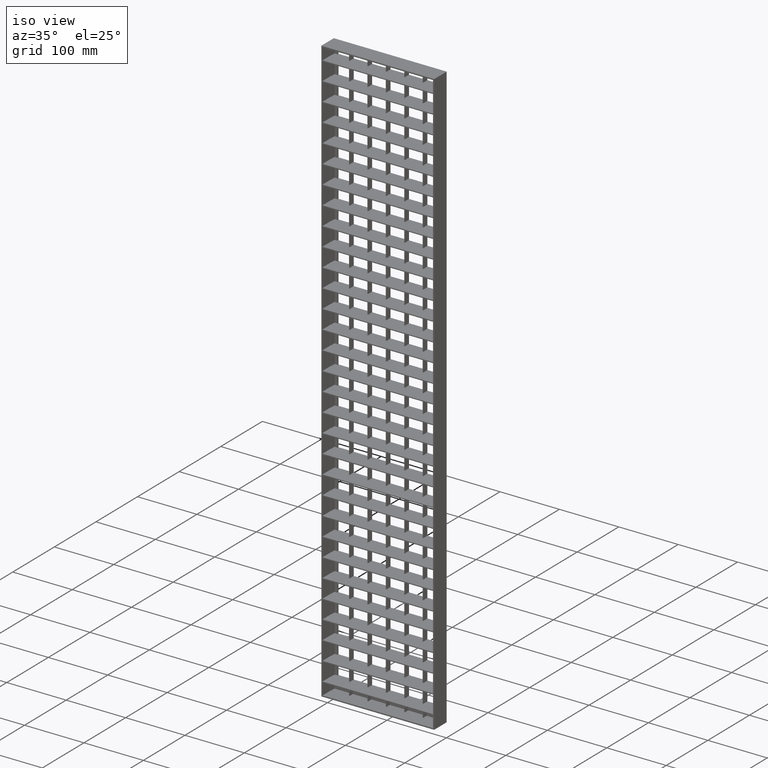
[diagram: clean part render]
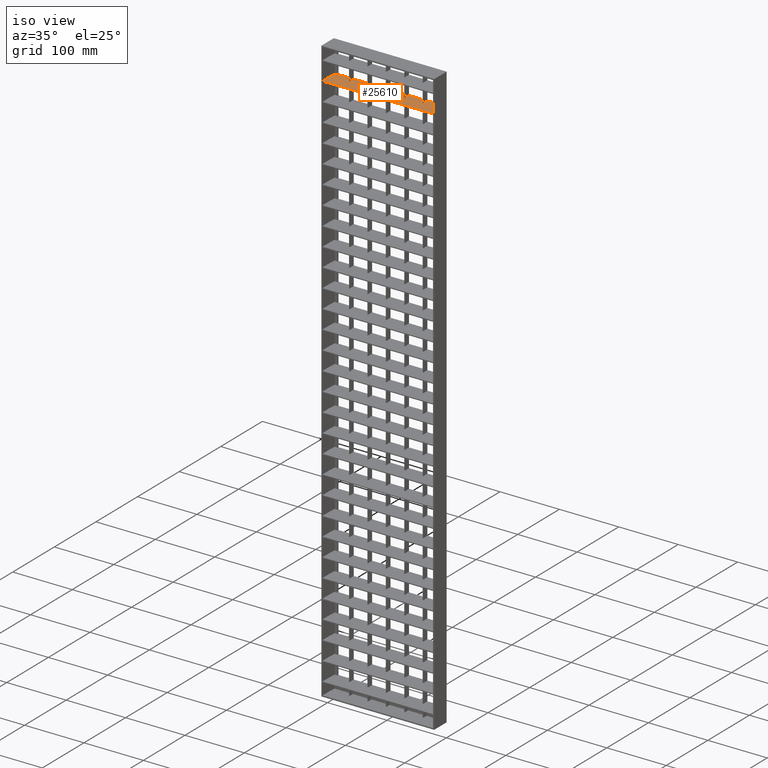
[diagram: same view with one face highlighted and labeled with its STEP entity id]
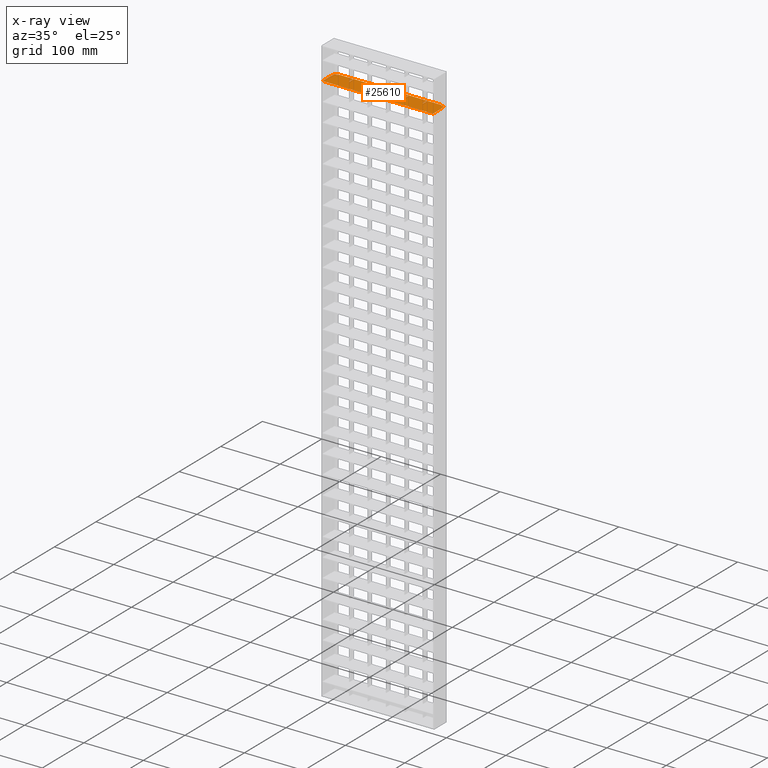
[diagram: x-ray of the same camera — body ghosted, the highlighted face saturated]
A machine part, iso view. The second image highlights one B-rep face of the part: STEP entity #25610.
The next image is the same camera in x-ray: the body ghosted, the highlighted face saturated — about 0% of this face is hidden behind the body in this view.
In plain terms, the highlighted planar face has unit normal (0, 0, 1).
Its self-contained STEP definition (entity closure, byte-faithful):
#11 = LINE ( 'NONE', #9444, #16000 ) ;
#98 = CARTESIAN_POINT ( 'NONE',  ( 182.0000000000000600, 12.99999999999991300, -53.25000000000002100 ) ) ;
#169 = CARTESIAN_POINT ( 'NONE',  ( 7.999999999999994700, 15.00000000000000400, -53.25000000000002100 ) ) ;
#260 = ORIENTED_EDGE ( 'NONE', *, *, #27481, .T. ) ;
#364 = VECTOR ( 'NONE', #28938, 1000.000000000000000 ) ;
#617 = VECTOR ( 'NONE', #13828, 1000.000000000000000 ) ;
#668 = DIRECTION ( 'NONE',  ( -0.0000000000000000000, 1.000000000000000000, 0.0000000000000000000 ) ) ;
#858 = LINE ( 'NONE', #17349, #5704 ) ;
#986 = EDGE_CURVE ( 'NONE', #2645, #6551, #23534, .T. ) ;
#1225 = PLANE ( 'NONE',  #17804 ) ;
#1647 = VERTEX_POINT ( 'NONE', #18516 ) ;
#1932 = CARTESIAN_POINT ( 'NONE',  ( 125.5000000000000600, 15.00000000000003000, -53.25000000000002100 ) ) ;
#1982 = CARTESIAN_POINT ( 'NONE',  ( 33.49999999999997200, 5.000000000000004400, -53.25000000000002100 ) ) ;
#2192 = DIRECTION ( 'NONE',  ( -1.000000000000000000, 0.0000000000000000000, 0.0000000000000000000 ) ) ;
#2348 = DIRECTION ( 'NONE',  ( -1.000000000000000000, 0.0000000000000000000, 0.0000000000000000000 ) ) ;
#2492 = VECTOR ( 'NONE', #11216, 1000.000000000000000 ) ;
#2598 = CARTESIAN_POINT ( 'NONE',  ( 157.5000000000000300, -14.99999999999994000, -53.25000000000002100 ) ) ;
#2645 = VERTEX_POINT ( 'NONE', #1932 ) ;
#2646 = CARTESIAN_POINT ( 'NONE',  ( 218.0374765917512100, 15.00000000000005900, -53.25000000000002100 ) ) ;
#2665 = EDGE_CURVE ( 'NONE', #24377, #4740, #11, .T. ) ;
#2683 = CARTESIAN_POINT ( 'NONE',  ( 182.0000000000000000, 15.00000000000000400, -53.25000000000002100 ) ) ;
#2855 = VERTEX_POINT ( 'NONE', #29142 ) ;
#3113 = EDGE_CURVE ( 'NONE', #5401, #33795, #5750, .T. ) ;
#3355 = VECTOR ( 'NONE', #15697, 1000.000000000000000 ) ;
#3435 = DIRECTION ( 'NONE',  ( -0.0000000000000000000, 1.000000000000000000, 0.0000000000000000000 ) ) ;
#3754 = VERTEX_POINT ( 'NONE', #26446 ) ;
#3827 = VECTOR ( 'NONE', #2348, 1000.000000000000000 ) ;
#3873 = ORIENTED_EDGE ( 'NONE', *, *, #26196, .F. ) ;
#4044 = ORIENTED_EDGE ( 'NONE', *, *, #13870, .F. ) ;
#4169 = LINE ( 'NONE', #11078, #32875 ) ;
#4242 = LINE ( 'NONE', #8551, #22304 ) ;
#4277 = VECTOR ( 'NONE', #30018, 1000.000000000000000 ) ;
#4444 = DIRECTION ( 'NONE',  ( -1.000000000000000000, 0.0000000000000000000, 0.0000000000000000000 ) ) ;
#4572 = VERTEX_POINT ( 'NONE', #9926 ) ;
#4740 = VERTEX_POINT ( 'NONE', #31374 ) ;
#4979 = EDGE_CURVE ( 'NONE', #13969, #5401, #14091, .T. ) ;
#4991 = VECTOR ( 'NONE', #18995, 1000.000000000000000 ) ;
#5071 = CARTESIAN_POINT ( 'NONE',  ( 63.49999999999997200, 5.000000000000000900, -53.25000000000002100 ) ) ;
#5093 = VECTOR ( 'NONE', #32927, 1000.000000000000000 ) ;
#5099 = CARTESIAN_POINT ( 'NONE',  ( 126.5000000000000600, 5.000000000000002700, -53.25000000000024200 ) ) ;
#5348 = DIRECTION ( 'NONE',  ( -0.0000000000000000000, 1.000000000000000000, 0.0000000000000000000 ) ) ;
#5397 = ORIENTED_EDGE ( 'NONE', *, *, #13413, .T. ) ;
#5401 = VERTEX_POINT ( 'NONE', #5099 ) ;
#5473 = CARTESIAN_POINT ( 'NONE',  ( 218.0374765917512100, 15.00000000000005900, -53.25000000000002100 ) ) ;
#5704 = VECTOR ( 'NONE', #10529, 1000.000000000000000 ) ;
#5750 = LINE ( 'NONE', #9039, #2492 ) ;
#6041 = FACE_OUTER_BOUND ( 'NONE', #30929, .T. ) ;
#6547 = DIRECTION ( 'NONE',  ( 1.000000000000000000, 0.0000000000000000000, -0.0000000000000000000 ) ) ;
#6551 = VERTEX_POINT ( 'NONE', #18221 ) ;
#6713 = ORIENTED_EDGE ( 'NONE', *, *, #4979, .T. ) ;
#6748 = ORIENTED_EDGE ( 'NONE', *, *, #20686, .T. ) ;
#6867 = LINE ( 'NONE', #20655, #15026 ) ;
#7119 = VERTEX_POINT ( 'NONE', #16712 ) ;
#7123 = VERTEX_POINT ( 'NONE', #27250 ) ;
#7126 = CARTESIAN_POINT ( 'NONE',  ( 218.0374765917512100, -14.99999999999994000, -53.25000000000002100 ) ) ;
#7221 = LINE ( 'NONE', #19759, #27342 ) ;
#7263 = LINE ( 'NONE', #14855, #11759 ) ;
#7483 = DIRECTION ( 'NONE',  ( 0.0000000000000000000, -1.000000000000000000, 0.0000000000000000000 ) ) ;
#7518 = VERTEX_POINT ( 'NONE', #15749 ) ;
#7537 = LINE ( 'NONE', #17014, #5093 ) ;
#7639 = VECTOR ( 'NONE', #6547, 1000.000000000000000 ) ;
#7841 = ORIENTED_EDGE ( 'NONE', *, *, #9731, .T. ) ;
#8001 = EDGE_CURVE ( 'NONE', #3754, #1647, #858, .T. ) ;
#8174 = CARTESIAN_POINT ( 'NONE',  ( 94.49999999999997200, 15.00000000000000200, -53.25000000000024200 ) ) ;
#8320 = EDGE_CURVE ( 'NONE', #23925, #7518, #16769, .T. ) ;
#8424 = CARTESIAN_POINT ( 'NONE',  ( 64.49999999999997200, 5.000000000000004400, -53.25000000000002100 ) ) ;
#8551 = CARTESIAN_POINT ( 'NONE',  ( 95.49999999999997200, -14.99999999999994000, -53.25000000000002100 ) ) ;
#8616 = CARTESIAN_POINT ( 'NONE',  ( 33.49999999999997200, 15.00000000000000200, -53.25000000000002100 ) ) ;
#8842 = EDGE_CURVE ( 'NONE', #2855, #7119, #30250, .T. ) ;
#9039 = CARTESIAN_POINT ( 'NONE',  ( 218.0374765917512100, 5.000000000000000900, -53.25000000000002100 ) ) ;
#9198 = VECTOR ( 'NONE', #33426, 1000.000000000000000 ) ;
#9347 = CARTESIAN_POINT ( 'NONE',  ( 2.499999999999974200, 13.00000000000000400, -53.25000000000002100 ) ) ;
#9444 = CARTESIAN_POINT ( 'NONE',  ( 218.0374765917512100, -14.99999999999994000, -53.25000000000002100 ) ) ;
#9590 = VERTEX_POINT ( 'NONE', #1982 ) ;
#9631 = DIRECTION ( 'NONE',  ( -1.000000000000000000, -3.061616997868382600E-016, 0.0000000000000000000 ) ) ;
#9729 = VECTOR ( 'NONE', #11930, 1000.000000000000000 ) ;
#9731 = EDGE_CURVE ( 'NONE', #7123, #13969, #25290, .T. ) ;
#9926 = CARTESIAN_POINT ( 'NONE',  ( 156.5000000000000300, 5.000000000000002700, -53.25000000000024200 ) ) ;
#9955 = CARTESIAN_POINT ( 'NONE',  ( 218.0374765917512100, 15.00000000000005900, -53.25000000000002100 ) ) ;
#10025 = ORIENTED_EDGE ( 'NONE', *, *, #18409, .T. ) ;
#10138 = CARTESIAN_POINT ( 'NONE',  ( 2.000000000000004900, 13.00000000000000400, -53.25000000000002100 ) ) ;
#10305 = EDGE_CURVE ( 'NONE', #29426, #25731, #32986, .T. ) ;
#10360 = VECTOR ( 'NONE', #13688, 1000.000000000000000 ) ;
#10462 = EDGE_CURVE ( 'NONE', #12437, #33728, #21502, .T. ) ;
#10529 = DIRECTION ( 'NONE',  ( 1.000000000000000000, 0.0000000000000000000, -0.0000000000000000000 ) ) ;
#10573 = EDGE_CURVE ( 'NONE', #33728, #6551, #4242, .T. ) ;
#10881 = VERTEX_POINT ( 'NONE', #9347 ) ;
#10975 = EDGE_CURVE ( 'NONE', #17738, #4572, #22276, .T. ) ;
#11078 = CARTESIAN_POINT ( 'NONE',  ( 2.499999999999974200, -14.99999999999994000, -53.25000000000002100 ) ) ;
#11079 = CARTESIAN_POINT ( 'NONE',  ( 32.49999999999997200, 5.000000000000000900, -53.25000000000002100 ) ) ;
#11216 = DIRECTION ( 'NONE',  ( -1.000000000000000000, 0.0000000000000000000, 0.0000000000000000000 ) ) ;
#11245 = ORIENTED_EDGE ( 'NONE', *, *, #11300, .T. ) ;
#11300 = EDGE_CURVE ( 'NONE', #29426, #22685, #31655, .T. ) ;
#11342 = ORIENTED_EDGE ( 'NONE', *, *, #33513, .T. ) ;
#11618 = DIRECTION ( 'NONE',  ( 0.0000000000000000000, -1.000000000000000000, 0.0000000000000000000 ) ) ;
#11759 = VECTOR ( 'NONE', #2192, 1000.000000000000000 ) ;
#11830 = DIRECTION ( 'NONE',  ( 0.0000000000000000000, -1.000000000000000000, 0.0000000000000000000 ) ) ;
#11892 = ORIENTED_EDGE ( 'NONE', *, *, #25209, .T. ) ;
#11930 = DIRECTION ( 'NONE',  ( -0.0000000000000000000, 1.000000000000000000, 0.0000000000000000000 ) ) ;
#11989 = ORIENTED_EDGE ( 'NONE', *, *, #13331, .T. ) ;
#12013 = DIRECTION ( 'NONE',  ( -1.000000000000000000, 0.0000000000000000000, 0.0000000000000000000 ) ) ;
#12023 = VECTOR ( 'NONE', #7483, 1000.000000000000000 ) ;
#12172 = DIRECTION ( 'NONE',  ( -1.000000000000000000, -3.061616997868382600E-016, 0.0000000000000000000 ) ) ;
#12437 = VERTEX_POINT ( 'NONE', #13643 ) ;
#12908 = LINE ( 'NONE', #2646, #31003 ) ;
#13165 = CARTESIAN_POINT ( 'NONE',  ( 32.49999999999997200, -14.99999999999994000, -53.25000000000002100 ) ) ;
#13331 = EDGE_CURVE ( 'NONE', #13404, #10881, #25767, .T. ) ;
#13404 = VERTEX_POINT ( 'NONE', #15529 ) ;
#13413 = EDGE_CURVE ( 'NONE', #31510, #28810, #21255, .T. ) ;
#13643 = CARTESIAN_POINT ( 'NONE',  ( 94.49999999999997200, 5.000000000000000900, -53.25000000000002100 ) ) ;
#13688 = DIRECTION ( 'NONE',  ( -1.000000000000000000, -3.061616997868382600E-016, 0.0000000000000000000 ) ) ;
#13797 = LINE ( 'NONE', #33057, #26951 ) ;
#13828 = DIRECTION ( 'NONE',  ( -0.0000000000000000000, 1.000000000000000000, 0.0000000000000000000 ) ) ;
#13870 = EDGE_CURVE ( 'NONE', #18414, #12437, #13797, .T. ) ;
#13939 = CARTESIAN_POINT ( 'NONE',  ( 63.49999999999997200, 15.00000000000000200, -53.25000000000024200 ) ) ;
#13969 = VERTEX_POINT ( 'NONE', #28573 ) ;
#14091 = LINE ( 'NONE', #32271, #25612 ) ;
#14387 = DIRECTION ( 'NONE',  ( -0.0000000000000000000, -1.000000000000000000, 0.0000000000000000000 ) ) ;
#14403 = CARTESIAN_POINT ( 'NONE',  ( 63.49999999999997200, -14.99999999999994000, -53.25000000000002100 ) ) ;
#14604 = VECTOR ( 'NONE', #15226, 1000.000000000000000 ) ;
#14663 = EDGE_CURVE ( 'NONE', #18414, #7518, #12908, .T. ) ;
#14697 = DIRECTION ( 'NONE',  ( -0.0000000000000000000, 1.000000000000000000, 0.0000000000000000000 ) ) ;
#14855 = CARTESIAN_POINT ( 'NONE',  ( 218.0374765917512100, 5.000000000000000900, -53.25000000000002100 ) ) ;
#14892 = CARTESIAN_POINT ( 'NONE',  ( 157.5000000000000300, 5.000000000000002700, -53.25000000000024200 ) ) ;
#15026 = VECTOR ( 'NONE', #25571, 1000.000000000000000 ) ;
#15226 = DIRECTION ( 'NONE',  ( -0.0000000000000000000, 1.000000000000000000, 0.0000000000000000000 ) ) ;
#15529 = CARTESIAN_POINT ( 'NONE',  ( 7.999999999999996400, 13.00000000000000400, -53.25000000000002100 ) ) ;
#15684 = CARTESIAN_POINT ( 'NONE',  ( 125.5000000000000600, 5.000000000000002700, -53.25000000000024200 ) ) ;
#15697 = DIRECTION ( 'NONE',  ( 0.0000000000000000000, -1.000000000000000000, 0.0000000000000000000 ) ) ;
#15732 = CARTESIAN_POINT ( 'NONE',  ( 188.0000000000000600, -15.00000000000000700, -53.25000000000002100 ) ) ;
#15749 = CARTESIAN_POINT ( 'NONE',  ( 64.49999999999997200, 15.00000000000001200, -53.25000000000002100 ) ) ;
#15908 = DIRECTION ( 'NONE',  ( -1.000000000000000000, -3.061616997868382600E-016, 0.0000000000000000000 ) ) ;
#15970 = LINE ( 'NONE', #20056, #23360 ) ;
#16000 = VECTOR ( 'NONE', #12172, 1000.000000000000000 ) ;
#16066 = LINE ( 'NONE', #18166, #4991 ) ;
#16165 = LINE ( 'NONE', #2598, #12023 ) ;
#16270 = VECTOR ( 'NONE', #22479, 1000.000000000000000 ) ;
#16282 = CARTESIAN_POINT ( 'NONE',  ( 32.49999999999997200, 15.00000000000000200, -53.25000000000024200 ) ) ;
#16661 = VECTOR ( 'NONE', #9631, 1000.000000000000000 ) ;
#16712 = CARTESIAN_POINT ( 'NONE',  ( 187.5000000000000600, 13.00000000000000400, -53.25000000000002100 ) ) ;
#16769 = LINE ( 'NONE', #17498, #28232 ) ;
#17014 = CARTESIAN_POINT ( 'NONE',  ( 218.0374765917512100, 5.000000000000000900, -53.25000000000002100 ) ) ;
#17224 = EDGE_CURVE ( 'NONE', #20191, #17738, #16165, .T. ) ;
#17275 = ORIENTED_EDGE ( 'NONE', *, *, #33301, .T. ) ;
#17349 = CARTESIAN_POINT ( 'NONE',  ( 218.0374765917512100, 5.000000000000000900, -53.25000000000002100 ) ) ;
#17398 = LINE ( 'NONE', #26886, #20697 ) ;
#17414 = ORIENTED_EDGE ( 'NONE', *, *, #26204, .T. ) ;
#17421 = ORIENTED_EDGE ( 'NONE', *, *, #29391, .F. ) ;
#17429 = ORIENTED_EDGE ( 'NONE', *, *, #28221, .F. ) ;
#17487 = ORIENTED_EDGE ( 'NONE', *, *, #3113, .T. ) ;
#17498 = CARTESIAN_POINT ( 'NONE',  ( 64.49999999999997200, -14.99999999999994000, -53.25000000000002100 ) ) ;
#17521 = DIRECTION ( 'NONE',  ( -1.000000000000000000, -3.061616997868382600E-016, 0.0000000000000000000 ) ) ;
#17738 = VERTEX_POINT ( 'NONE', #14892 ) ;
#17804 = AXIS2_PLACEMENT_3D ( 'NONE', #7126, #25497, #19660 ) ;
#18025 = CARTESIAN_POINT ( 'NONE',  ( 218.0374765917512100, 5.000000000000000900, -53.25000000000002100 ) ) ;
#18166 = CARTESIAN_POINT ( 'NONE',  ( 218.0374765917512100, 15.00000000000005900, -53.25000000000002100 ) ) ;
#18221 = CARTESIAN_POINT ( 'NONE',  ( 95.49999999999997200, 15.00000000000002000, -53.25000000000002100 ) ) ;
#18257 = ORIENTED_EDGE ( 'NONE', *, *, #27377, .F. ) ;
#18409 = EDGE_CURVE ( 'NONE', #28810, #20191, #16066, .T. ) ;
#18414 = VERTEX_POINT ( 'NONE', #8174 ) ;
#18516 = CARTESIAN_POINT ( 'NONE',  ( 2.499999999999974200, 5.000000000000004400, -53.25000000000002100 ) ) ;
#18736 = ORIENTED_EDGE ( 'NONE', *, *, #8320, .F. ) ;
#18995 = DIRECTION ( 'NONE',  ( -1.000000000000000000, -3.061616997868382600E-016, 0.0000000000000000000 ) ) ;
#19013 = ORIENTED_EDGE ( 'NONE', *, *, #10573, .F. ) ;
#19070 = LINE ( 'NONE', #32177, #617 ) ;
#19164 = LINE ( 'NONE', #30269, #7639 ) ;
#19587 = LINE ( 'NONE', #30481, #16270 ) ;
#19626 = EDGE_CURVE ( 'NONE', #24838, #25905, #15970, .T. ) ;
#19660 = DIRECTION ( 'NONE',  ( 1.000000000000000000, 0.0000000000000000000, -0.0000000000000000000 ) ) ;
#19759 = CARTESIAN_POINT ( 'NONE',  ( 94.99999999999994300, 13.00000000000000400, -53.25000000000002100 ) ) ;
#19936 = VECTOR ( 'NONE', #14387, 1000.000000000000000 ) ;
#20007 = CARTESIAN_POINT ( 'NONE',  ( 187.5000000000000600, -14.99999999999994000, -53.25000000000002100 ) ) ;
#20056 = CARTESIAN_POINT ( 'NONE',  ( 218.0374765917512100, 15.00000000000005900, -53.25000000000002100 ) ) ;
#20191 = VERTEX_POINT ( 'NONE', #24944 ) ;
#20655 = CARTESIAN_POINT ( 'NONE',  ( 188.0000000000000600, -14.99999999999994000, -53.25000000000002100 ) ) ;
#20686 = EDGE_CURVE ( 'NONE', #3754, #4740, #28531, .T. ) ;
#20697 = VECTOR ( 'NONE', #668, 1000.000000000000000 ) ;
#20886 = ORIENTED_EDGE ( 'NONE', *, *, #986, .T. ) ;
#21183 = ORIENTED_EDGE ( 'NONE', *, *, #14663, .T. ) ;
#21255 = LINE ( 'NONE', #98, #364 ) ;
#21502 = LINE ( 'NONE', #33542, #9198 ) ;
#22276 = LINE ( 'NONE', #18025, #3827 ) ;
#22304 = VECTOR ( 'NONE', #5348, 1000.000000000000000 ) ;
#22479 = DIRECTION ( 'NONE',  ( 8.673617379884036500E-016, -1.000000000000000000, 0.0000000000000000000 ) ) ;
#22685 = VERTEX_POINT ( 'NONE', #8616 ) ;
#23078 = ORIENTED_EDGE ( 'NONE', *, *, #23298, .F. ) ;
#23298 = EDGE_CURVE ( 'NONE', #24838, #33953, #26734, .T. ) ;
#23360 = VECTOR ( 'NONE', #17521, 1000.000000000000000 ) ;
#23517 = CARTESIAN_POINT ( 'NONE',  ( 95.49999999999997200, 5.000000000000004400, -53.25000000000002100 ) ) ;
#23534 = LINE ( 'NONE', #5473, #10360 ) ;
#23925 = VERTEX_POINT ( 'NONE', #8424 ) ;
#24377 = VERTEX_POINT ( 'NONE', #15732 ) ;
#24838 = VERTEX_POINT ( 'NONE', #16282 ) ;
#24944 = CARTESIAN_POINT ( 'NONE',  ( 157.5000000000000300, 15.00000000000000200, -53.25000000000024200 ) ) ;
#25083 = CARTESIAN_POINT ( 'NONE',  ( 2.000000000000004900, -15.00000000000000000, -53.25000000000002100 ) ) ;
#25086 = ORIENTED_EDGE ( 'NONE', *, *, #17224, .T. ) ;
#25128 = ORIENTED_EDGE ( 'NONE', *, *, #8842, .T. ) ;
#25209 = EDGE_CURVE ( 'NONE', #29548, #2855, #7263, .T. ) ;
#25290 = LINE ( 'NONE', #9955, #16661 ) ;
#25376 = VECTOR ( 'NONE', #4444, 1000.000000000000000 ) ;
#25433 = ORIENTED_EDGE ( 'NONE', *, *, #8001, .F. ) ;
#25497 = DIRECTION ( 'NONE',  ( 0.0000000000000000000, 0.0000000000000000000, 1.000000000000000000 ) ) ;
#25571 = DIRECTION ( 'NONE',  ( 0.0000000000000000000, -1.000000000000000000, 0.0000000000000000000 ) ) ;
#25610 = ADVANCED_FACE ( 'NONE', ( #6041 ), #1225, .T. ) ;
#25612 = VECTOR ( 'NONE', #11618, 1000.000000000000000 ) ;
#25731 = VERTEX_POINT ( 'NONE', #5071 ) ;
#25767 = LINE ( 'NONE', #10138, #25376 ) ;
#25905 = VERTEX_POINT ( 'NONE', #169 ) ;
#26196 = EDGE_CURVE ( 'NONE', #25731, #23925, #19164, .T. ) ;
#26204 = EDGE_CURVE ( 'NONE', #25905, #13404, #19587, .T. ) ;
#26446 = CARTESIAN_POINT ( 'NONE',  ( 2.000000000000004900, 5.000000000000000900, -53.25000000000002100 ) ) ;
#26734 = LINE ( 'NONE', #13165, #3355 ) ;
#26886 = CARTESIAN_POINT ( 'NONE',  ( 33.49999999999997200, -14.99999999999994000, -53.25000000000002100 ) ) ;
#26951 = VECTOR ( 'NONE', #11830, 1000.000000000000000 ) ;
#27056 = DIRECTION ( 'NONE',  ( -1.000000000000000000, -3.061616997868382600E-016, 0.0000000000000000000 ) ) ;
#27250 = CARTESIAN_POINT ( 'NONE',  ( 156.5000000000000300, 15.00000000000003900, -53.25000000000002100 ) ) ;
#27342 = VECTOR ( 'NONE', #12013, 1000.000000000000000 ) ;
#27377 = EDGE_CURVE ( 'NONE', #33953, #9590, #7537, .T. ) ;
#27394 = CARTESIAN_POINT ( 'NONE',  ( 218.0374765917512100, 15.00000000000005900, -53.25000000000002100 ) ) ;
#27481 = EDGE_CURVE ( 'NONE', #4572, #7123, #19070, .T. ) ;
#27813 = CARTESIAN_POINT ( 'NONE',  ( 188.0000000000000600, 5.000000000000004400, -53.25000000000002100 ) ) ;
#28221 = EDGE_CURVE ( 'NONE', #9590, #22685, #17398, .T. ) ;
#28232 = VECTOR ( 'NONE', #14697, 1000.000000000000000 ) ;
#28531 = LINE ( 'NONE', #25083, #19936 ) ;
#28573 = CARTESIAN_POINT ( 'NONE',  ( 126.5000000000000600, 15.00000000000000200, -53.25000000000024200 ) ) ;
#28810 = VERTEX_POINT ( 'NONE', #2683 ) ;
#28938 = DIRECTION ( 'NONE',  ( 8.673617379884037400E-016, 1.000000000000000000, -0.0000000000000000000 ) ) ;
#29074 = ORIENTED_EDGE ( 'NONE', *, *, #10975, .T. ) ;
#29142 = CARTESIAN_POINT ( 'NONE',  ( 187.5000000000000600, 5.000000000000002700, -53.25000000000024200 ) ) ;
#29203 = VECTOR ( 'NONE', #27056, 1000.000000000000000 ) ;
#29391 = EDGE_CURVE ( 'NONE', #1647, #10881, #4169, .T. ) ;
#29426 = VERTEX_POINT ( 'NONE', #13939 ) ;
#29548 = VERTEX_POINT ( 'NONE', #27813 ) ;
#30018 = DIRECTION ( 'NONE',  ( 0.0000000000000000000, -1.000000000000000000, 0.0000000000000000000 ) ) ;
#30066 = ORIENTED_EDGE ( 'NONE', *, *, #32240, .F. ) ;
#30250 = LINE ( 'NONE', #20007, #9729 ) ;
#30269 = CARTESIAN_POINT ( 'NONE',  ( 218.0374765917512100, 5.000000000000000900, -53.25000000000002100 ) ) ;
#30420 = CARTESIAN_POINT ( 'NONE',  ( 182.0000000000000600, 13.00000000000000400, -53.25000000000002100 ) ) ;
#30481 = CARTESIAN_POINT ( 'NONE',  ( 7.999999999999996400, 13.00000000000000400, -53.25000000000002100 ) ) ;
#30929 = EDGE_LOOP ( 'NONE', ( #30066, #11892, #25128, #11342, #5397, #10025, #25086, #29074, #260, #7841, #6713, #17487, #17275, #20886, #19013, #33593, #4044, #21183, #18736, #3873, #32020, #11245, #17429, #18257, #23078, #31660, #17414, #11989, #17421, #25433, #6748, #31141 ) ) ;
#31003 = VECTOR ( 'NONE', #15908, 1000.000000000000000 ) ;
#31141 = ORIENTED_EDGE ( 'NONE', *, *, #2665, .F. ) ;
#31374 = CARTESIAN_POINT ( 'NONE',  ( 2.000000000000001800, -15.00000000000000700, -53.25000000000002100 ) ) ;
#31510 = VERTEX_POINT ( 'NONE', #30420 ) ;
#31655 = LINE ( 'NONE', #27394, #29203 ) ;
#31660 = ORIENTED_EDGE ( 'NONE', *, *, #19626, .T. ) ;
#32020 = ORIENTED_EDGE ( 'NONE', *, *, #10305, .F. ) ;
#32177 = CARTESIAN_POINT ( 'NONE',  ( 156.5000000000000300, -14.99999999999994000, -53.25000000000002100 ) ) ;
#32240 = EDGE_CURVE ( 'NONE', #29548, #24377, #6867, .T. ) ;
#32254 = LINE ( 'NONE', #33254, #14604 ) ;
#32271 = CARTESIAN_POINT ( 'NONE',  ( 126.5000000000000600, -14.99999999999994000, -53.25000000000002100 ) ) ;
#32875 = VECTOR ( 'NONE', #3435, 1000.000000000000000 ) ;
#32927 = DIRECTION ( 'NONE',  ( 1.000000000000000000, 0.0000000000000000000, -0.0000000000000000000 ) ) ;
#32986 = LINE ( 'NONE', #14403, #4277 ) ;
#33057 = CARTESIAN_POINT ( 'NONE',  ( 94.49999999999997200, -14.99999999999994000, -53.25000000000002100 ) ) ;
#33254 = CARTESIAN_POINT ( 'NONE',  ( 125.5000000000000600, -14.99999999999994000, -53.25000000000002100 ) ) ;
#33301 = EDGE_CURVE ( 'NONE', #33795, #2645, #32254, .T. ) ;
#33426 = DIRECTION ( 'NONE',  ( 1.000000000000000000, 0.0000000000000000000, -0.0000000000000000000 ) ) ;
#33513 = EDGE_CURVE ( 'NONE', #7119, #31510, #7221, .T. ) ;
#33542 = CARTESIAN_POINT ( 'NONE',  ( 218.0374765917512100, 5.000000000000000900, -53.25000000000002100 ) ) ;
#33593 = ORIENTED_EDGE ( 'NONE', *, *, #10462, .F. ) ;
#33728 = VERTEX_POINT ( 'NONE', #23517 ) ;
#33795 = VERTEX_POINT ( 'NONE', #15684 ) ;
#33953 = VERTEX_POINT ( 'NONE', #11079 ) ;